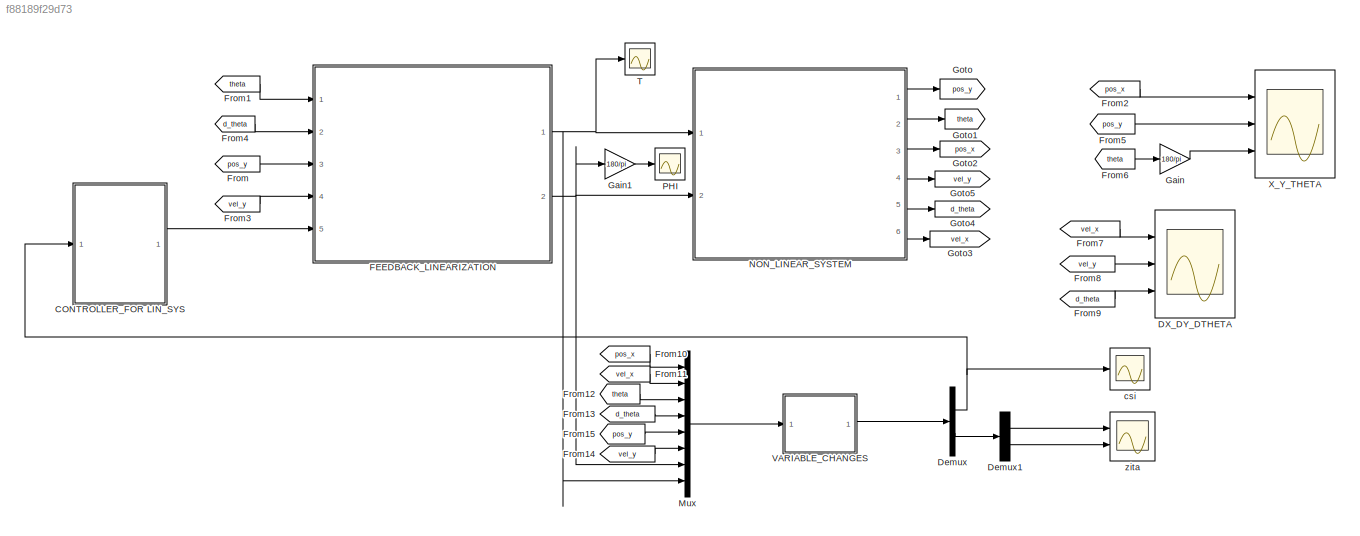
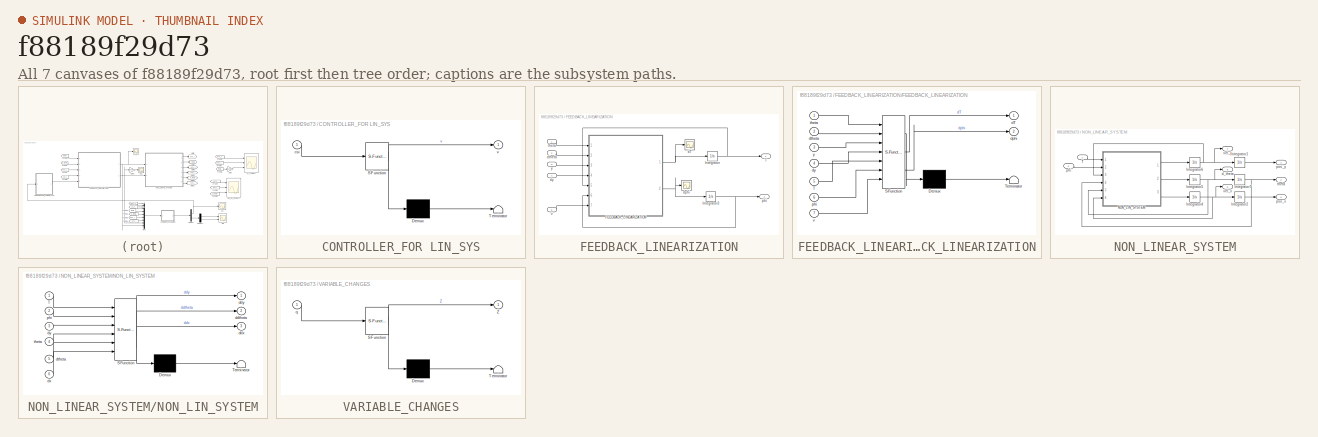
[diagram: thumbnail index - all 7 canvases of the model, root first then tree order]
MODEL slx_f88189f29d73
KIND model
CONFIG AbsTol = auto
CONFIG EnableMultiTasking = off
CONFIG FixedStep = 1e-3
CONFIG MaxStep = auto
CONFIG MinStep = auto
CONFIG RelTol = 1e-3
CONFIG SampleTimeConstraint = Unconstrained
CONFIG SolverName = FixedStepAuto
CONFIG StartTime = 0.0
CONFIG StopTime = 100
BLOCK [SubSystem] CONTROLLER_FOR LIN_SYS
  ErrorFcn = Stateflow.Translate.translate
  PermitHierarchicalResolution = ExplicitOnly
  Ports = [1, 1]
  RequestExecContextInheritance = off
  SFBlockType = MATLAB Function
  TreatAsAtomicUnit = on
BLOCK [Demux] CONTROLLER_FOR LIN_SYS/ Demux 
  Outputs = 1
  Ports = [1, 1]
BLOCK [S-Function] CONTROLLER_FOR LIN_SYS/ SFunction 
  EnableBusSupport = on
  FunctionName = sf_sfun
  PortCounts = [1 2]
  Ports = [1, 2]
  SFcnIsStateOwnerBlock = off
  SFunctionDeploymentMode = off
  Tag = Stateflow S-Function 3
BLOCK [Terminator] CONTROLLER_FOR LIN_SYS/ Terminator 
BLOCK [Inport] CONTROLLER_FOR LIN_SYS/csi
BLOCK [Outport] CONTROLLER_FOR LIN_SYS/v
BLOCK [Scope] DX_DY_DTHETA
  Floating = off
  NumInputPorts = 3
  Ports = [3]
  ScopeSpecificationString = Simulink.scopes.TimeScopeBlockCfg('CurrentConfiguration', extmgr.ConfigurationSet(extmgr.Configuration('Core','General UI',true),extmgr.Configuration('Core','Source UI',true),extmgr.Configuration('Sources','WiredSimulink',true,'DataLoggingVariableName','ScopeData5'),extmgr.Configuration('Visuals','Time Domain',true,'SerializedDisplays',{struct('MinYLimReal','-2.97468','MaxYLimReal','0.33052','YLab...<+2737ch>
BLOCK [Demux] Demux
  Outputs = [6 2]
  Ports = [1, 2]
BLOCK [Demux] Demux1
  Outputs = 2
  Ports = [1, 2]
BLOCK [SubSystem] FEEDBACK_LINEARIZATION
  Ports = [5, 2]
  RequestExecContextInheritance = off
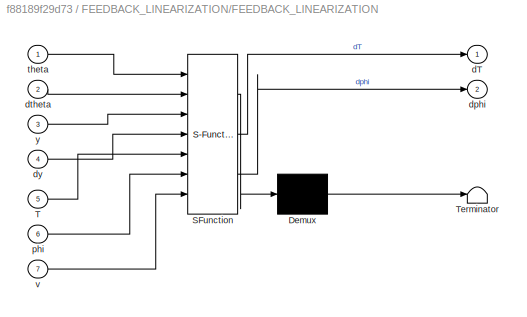
BLOCK [SubSystem] FEEDBACK_LINEARIZATION/FEEDBACK_LINEARIZATION
  ErrorFcn = Stateflow.Translate.translate
  PermitHierarchicalResolution = ExplicitOnly
  Ports = [7, 2]
  RequestExecContextInheritance = off
  SFBlockType = MATLAB Function
  TreatAsAtomicUnit = on
BLOCK [Demux] FEEDBACK_LINEARIZATION/FEEDBACK_LINEARIZATION/ Demux 
  Outputs = 1
  Ports = [1, 1]
BLOCK [S-Function] FEEDBACK_LINEARIZATION/FEEDBACK_LINEARIZATION/ SFunction 
  EnableBusSupport = on
  FunctionName = sf_sfun
  Parameters = J_par,M_par,g_par,l_par,mu_y_par
  PortCounts = [7 3]
  Ports = [7, 3]
  SFcnIsStateOwnerBlock = off
  SFunctionDeploymentMode = off
  Tag = Stateflow S-Function 1
BLOCK [Terminator] FEEDBACK_LINEARIZATION/FEEDBACK_LINEARIZATION/ Terminator 
BLOCK [Inport] FEEDBACK_LINEARIZATION/FEEDBACK_LINEARIZATION/T
  Port = 5
BLOCK [Outport] FEEDBACK_LINEARIZATION/FEEDBACK_LINEARIZATION/dT
BLOCK [Outport] FEEDBACK_LINEARIZATION/FEEDBACK_LINEARIZATION/dphi
  Port = 2
BLOCK [Inport] FEEDBACK_LINEARIZATION/FEEDBACK_LINEARIZATION/dtheta
  Port = 2
BLOCK [Inport] FEEDBACK_LINEARIZATION/FEEDBACK_LINEARIZATION/dy
  Port = 4
BLOCK [Inport] FEEDBACK_LINEARIZATION/FEEDBACK_LINEARIZATION/phi
  Port = 6
BLOCK [Inport] FEEDBACK_LINEARIZATION/FEEDBACK_LINEARIZATION/theta
BLOCK [Inport] FEEDBACK_LINEARIZATION/FEEDBACK_LINEARIZATION/v
  Port = 7
BLOCK [Inport] FEEDBACK_LINEARIZATION/FEEDBACK_LINEARIZATION/y
  Port = 3
BLOCK [Integrator] FEEDBACK_LINEARIZATION/Integrator
  InitialCondition = T0
  Ports = [1, 1]
BLOCK [Integrator] FEEDBACK_LINEARIZATION/Integrator3
  Ports = [1, 1]
BLOCK [Outport] FEEDBACK_LINEARIZATION/T
BLOCK [Scope] FEEDBACK_LINEARIZATION/dT
  Floating = off
  NumInputPorts = 1
  Ports = [1]
  ScopeSpecificationString = Simulink.scopes.TimeScopeBlockCfg('CurrentConfiguration', extmgr.ConfigurationSet(extmgr.Configuration('Core','General UI',true),extmgr.Configuration('Core','Source UI',true),extmgr.Configuration('Sources','WiredSimulink',true,'DataLoggingVariableName','ScopeData7'),extmgr.Configuration('Visuals','Time Domain',true),extmgr.Configuration('Tools','Plot Navigation',true),extmgr.Configuration('Tools',...<+40ch>
BLOCK [Scope] FEEDBACK_LINEARIZATION/dphi
  Floating = off
  NumInputPorts = 1
  Ports = [1]
  ScopeSpecificationString = Simulink.scopes.TimeScopeBlockCfg('CurrentConfiguration', extmgr.ConfigurationSet(extmgr.Configuration('Core','General UI',true),extmgr.Configuration('Core','Source UI',true),extmgr.Configuration('Sources','WiredSimulink',true,'DataLoggingVariableName','ScopeData6'),extmgr.Configuration('Visuals','Time Domain',true),extmgr.Configuration('Tools','Plot Navigation',true),extmgr.Configuration('Tools',...<+40ch>
BLOCK [Inport] FEEDBACK_LINEARIZATION/dtheta
  Port = 2
BLOCK [Inport] FEEDBACK_LINEARIZATION/dy
  Port = 4
BLOCK [Outport] FEEDBACK_LINEARIZATION/phi
  Port = 2
BLOCK [Inport] FEEDBACK_LINEARIZATION/theta
BLOCK [Inport] FEEDBACK_LINEARIZATION/v
  Port = 5
BLOCK [Inport] FEEDBACK_LINEARIZATION/y
  Port = 3
BLOCK [From] From
  GotoTag = pos_y
BLOCK [From] From1
  GotoTag = theta
BLOCK [From] From10
  GotoTag = pos_x
BLOCK [From] From11
  GotoTag = vel_x
BLOCK [From] From12
  GotoTag = theta
BLOCK [From] From13
  GotoTag = d_theta
BLOCK [From] From14
  GotoTag = vel_y
BLOCK [From] From15
  GotoTag = pos_y
BLOCK [From] From2
  GotoTag = pos_x
BLOCK [From] From3
  GotoTag = vel_y
BLOCK [From] From4
  GotoTag = d_theta
BLOCK [From] From5
  GotoTag = pos_y
BLOCK [From] From6
  GotoTag = theta
BLOCK [From] From7
  GotoTag = vel_x
BLOCK [From] From8
  GotoTag = vel_y
BLOCK [From] From9
  GotoTag = d_theta
BLOCK [Gain] Gain
  Gain = 180/pi
BLOCK [Gain] Gain1
  Gain = 180/pi
BLOCK [Goto] Goto
  GotoTag = pos_y
BLOCK [Goto] Goto1
  GotoTag = theta
BLOCK [Goto] Goto2
  GotoTag = pos_x
BLOCK [Goto] Goto3
  GotoTag = vel_x
BLOCK [Goto] Goto4
  GotoTag = d_theta
BLOCK [Goto] Goto5
  GotoTag = vel_y
BLOCK [Mux] Mux
  DisplayOption = bar
  Inputs = 8
  Ports = [8, 1]
BLOCK [SubSystem] NON_LINEAR_SYSTEM
  Ports = [2, 6]
  RequestExecContextInheritance = off
BLOCK [Integrator] NON_LINEAR_SYSTEM/Integrator1
  InitialCondition = y0
  Ports = [1, 1]
BLOCK [Integrator] NON_LINEAR_SYSTEM/Integrator2
  InitialCondition = x0
  Ports = [1, 1]
BLOCK [Integrator] NON_LINEAR_SYSTEM/Integrator4
  Ports = [1, 1]
BLOCK [Integrator] NON_LINEAR_SYSTEM/Integrator5
  Ports = [1, 1]
BLOCK [Integrator] NON_LINEAR_SYSTEM/Integrator6
  Ports = [1, 1]
BLOCK [Integrator] NON_LINEAR_SYSTEM/Integrator7
  InitialCondition = theta0
  Ports = [1, 1]
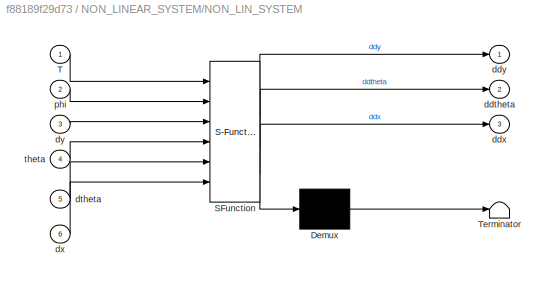
BLOCK [SubSystem] NON_LINEAR_SYSTEM/NON_LIN_SYSTEM
  ErrorFcn = Stateflow.Translate.translate
  PermitHierarchicalResolution = ExplicitOnly
  Ports = [6, 3]
  RequestExecContextInheritance = off
  SFBlockType = MATLAB Function
  TreatAsAtomicUnit = on
BLOCK [Demux] NON_LINEAR_SYSTEM/NON_LIN_SYSTEM/ Demux 
  Outputs = 1
  Ports = [1, 1]
BLOCK [S-Function] NON_LINEAR_SYSTEM/NON_LIN_SYSTEM/ SFunction 
  EnableBusSupport = on
  FunctionName = sf_sfun
  Parameters = J_par,M_par,g_par,l_par,mu_x_par,mu_y_par
  PortCounts = [6 4]
  Ports = [6, 4]
  SFcnIsStateOwnerBlock = off
  SFunctionDeploymentMode = off
  Tag = Stateflow S-Function 2
BLOCK [Terminator] NON_LINEAR_SYSTEM/NON_LIN_SYSTEM/ Terminator 
BLOCK [Inport] NON_LINEAR_SYSTEM/NON_LIN_SYSTEM/T
BLOCK [Outport] NON_LINEAR_SYSTEM/NON_LIN_SYSTEM/ddtheta
  Port = 2
BLOCK [Outport] NON_LINEAR_SYSTEM/NON_LIN_SYSTEM/ddx
  Port = 3
BLOCK [Outport] NON_LINEAR_SYSTEM/NON_LIN_SYSTEM/ddy
BLOCK [Inport] NON_LINEAR_SYSTEM/NON_LIN_SYSTEM/dtheta
  Port = 5
BLOCK [Inport] NON_LINEAR_SYSTEM/NON_LIN_SYSTEM/dx
  Port = 6
BLOCK [Inport] NON_LINEAR_SYSTEM/NON_LIN_SYSTEM/dy
  Port = 3
BLOCK [Inport] NON_LINEAR_SYSTEM/NON_LIN_SYSTEM/phi
  Port = 2
BLOCK [Inport] NON_LINEAR_SYSTEM/NON_LIN_SYSTEM/theta
  Port = 4
BLOCK [Inport] NON_LINEAR_SYSTEM/T
BLOCK [Outport] NON_LINEAR_SYSTEM/d_theta
  Port = 5
BLOCK [Inport] NON_LINEAR_SYSTEM/phi
  Port = 2
BLOCK [Outport] NON_LINEAR_SYSTEM/pos_x
  Port = 3
BLOCK [Outport] NON_LINEAR_SYSTEM/pos_y
BLOCK [Outport] NON_LINEAR_SYSTEM/theta
  Port = 2
BLOCK [Outport] NON_LINEAR_SYSTEM/vel_x
  Port = 6
BLOCK [Outport] NON_LINEAR_SYSTEM/vel_y
  Port = 4
BLOCK [Scope] PHI
  Floating = off
  NumInputPorts = 1
  Ports = [1]
  ScopeSpecificationString = Simulink.scopes.TimeScopeBlockCfg('CurrentConfiguration', extmgr.ConfigurationSet(extmgr.Configuration('Core','General UI',true),extmgr.Configuration('Core','Source UI',true),extmgr.Configuration('Sources','WiredSimulink',true,'DataLoggingVariableName','ScopeData3'),extmgr.Configuration('Visuals','Time Domain',true,'SerializedDisplays',{struct('MinYLimReal','-5.93753','MaxYLimReal','33.41567','YLa...<+1420ch>
BLOCK [Scope] T
  Floating = off
  NumInputPorts = 1
  Ports = [1]
  ScopeSpecificationString = Simulink.scopes.TimeScopeBlockCfg('CurrentConfiguration', extmgr.ConfigurationSet(extmgr.Configuration('Core','General UI',true),extmgr.Configuration('Core','Source UI',true),extmgr.Configuration('Sources','WiredSimulink',true,'DataLoggingVariableName','ScopeData2'),extmgr.Configuration('Visuals','Time Domain',true,'SerializedDisplays',{struct('MinYLimReal','275874.0907','MaxYLimReal','10869347.32...<+1496ch>
BLOCK [SubSystem] VARIABLE_CHANGES
  ErrorFcn = Stateflow.Translate.translate
  PermitHierarchicalResolution = ExplicitOnly
  Ports = [1, 1]
  RequestExecContextInheritance = off
  SFBlockType = MATLAB Function
  TreatAsAtomicUnit = on
BLOCK [Demux] VARIABLE_CHANGES/ Demux 
  Outputs = 1
  Ports = [1, 1]
BLOCK [S-Function] VARIABLE_CHANGES/ SFunction 
  EnableBusSupport = on
  FunctionName = sf_sfun
  Parameters = J_par,M_par,g_par,l_par,mu_y_par
  PortCounts = [1 2]
  Ports = [1, 2]
  SFcnIsStateOwnerBlock = off
  SFunctionDeploymentMode = off
  Tag = Stateflow S-Function 4
BLOCK [Terminator] VARIABLE_CHANGES/ Terminator 
BLOCK [Outport] VARIABLE_CHANGES/Z
BLOCK [Inport] VARIABLE_CHANGES/q
BLOCK [Scope] X_Y_THETA
  Floating = off
  NumInputPorts = 3
  Ports = [3]
  ScopeSpecificationString = Simulink.scopes.TimeScopeBlockCfg('CurrentConfiguration', extmgr.ConfigurationSet(extmgr.Configuration('Core','General UI',true),extmgr.Configuration('Core','Source UI',true),extmgr.Configuration('Sources','WiredSimulink',true,'DataLoggingVariableName','ScopeData4'),extmgr.Configuration('Visuals','Time Domain',true,'SerializedDisplays',{struct('MinYLimReal','-319.12177','MaxYLimReal','35.45797','Y...<+2842ch>
BLOCK [Scope] csi
  Floating = off
  NumInputPorts = 1
  Ports = [1]
  ScopeSpecificationString = Simulink.scopes.TimeScopeBlockCfg('CurrentConfiguration', extmgr.ConfigurationSet(extmgr.Configuration('Core','General UI',true),extmgr.Configuration('Core','Source UI',true),extmgr.Configuration('Sources','WiredSimulink',true,'DataLoggingVariableName','ScopeData1'),extmgr.Configuration('Visuals','Time Domain',true),extmgr.Configuration('Tools','Plot Navigation',true),extmgr.Configuration('Tools',...<+40ch>
BLOCK [Scope] zita
  Floating = off
  NumInputPorts = 2
  Ports = [2]
  ScopeSpecificationString = Simulink.scopes.TimeScopeBlockCfg('CurrentConfiguration', extmgr.ConfigurationSet(extmgr.Configuration('Core','General UI',true),extmgr.Configuration('Core','Source UI',true),extmgr.Configuration('Sources','WiredSimulink',true,'DataLoggingVariableName','ScopeData3'),extmgr.Configuration('Visuals','Time Domain',true,'SerializedDisplays',{struct('MinYLimReal','-2554.75658','MaxYLimReal','284.97295',...<+2060ch>
LINE CONTROLLER_FOR LIN_SYS:1 -> FEEDBACK_LINEARIZATION:5
LINE Demux1:1 -> zita:1
LINE Demux1:2 -> zita:2
NET Demux:1 -> CONTROLLER_FOR LIN_SYS:1, csi:1
LINE Demux:2 -> Demux1:1
NET FEEDBACK_LINEARIZATION/FEEDBACK_LINEARIZATION:1 -> FEEDBACK_LINEARIZATION/Integrator:1, FEEDBACK_LINEARIZATION/dT:1
NET FEEDBACK_LINEARIZATION/FEEDBACK_LINEARIZATION:2 -> FEEDBACK_LINEARIZATION/Integrator3:1, FEEDBACK_LINEARIZATION/dphi:1
NET FEEDBACK_LINEARIZATION/Integrator3:1 -> FEEDBACK_LINEARIZATION/FEEDBACK_LINEARIZATION:6, FEEDBACK_LINEARIZATION/phi:1
NET FEEDBACK_LINEARIZATION/Integrator:1 -> FEEDBACK_LINEARIZATION/FEEDBACK_LINEARIZATION:5, FEEDBACK_LINEARIZATION/T:1
LINE FEEDBACK_LINEARIZATION/dtheta:1 -> FEEDBACK_LINEARIZATION/FEEDBACK_LINEARIZATION:2
LINE FEEDBACK_LINEARIZATION/dy:1 -> FEEDBACK_LINEARIZATION/FEEDBACK_LINEARIZATION:4
LINE FEEDBACK_LINEARIZATION/theta:1 -> FEEDBACK_LINEARIZATION/FEEDBACK_LINEARIZATION:1
LINE FEEDBACK_LINEARIZATION/v:1 -> FEEDBACK_LINEARIZATION/FEEDBACK_LINEARIZATION:7
LINE FEEDBACK_LINEARIZATION/y:1 -> FEEDBACK_LINEARIZATION/FEEDBACK_LINEARIZATION:3
NET FEEDBACK_LINEARIZATION:1 -> Mux:8, NON_LINEAR_SYSTEM:1, T:1
NET FEEDBACK_LINEARIZATION:2 -> Gain1:1, Mux:7, NON_LINEAR_SYSTEM:2
LINE From10:1 -> Mux:1
LINE From11:1 -> Mux:2
LINE From12:1 -> Mux:3
LINE From13:1 -> Mux:4
LINE From14:1 -> Mux:6
LINE From15:1 -> Mux:5
LINE From1:1 -> FEEDBACK_LINEARIZATION:1
LINE From2:1 -> X_Y_THETA:1
LINE From3:1 -> FEEDBACK_LINEARIZATION:4
LINE From4:1 -> FEEDBACK_LINEARIZATION:2
LINE From5:1 -> X_Y_THETA:2
LINE From6:1 -> Gain:1
LINE From7:1 -> DX_DY_DTHETA:1
LINE From8:1 -> DX_DY_DTHETA:2
LINE From9:1 -> DX_DY_DTHETA:3
LINE From:1 -> FEEDBACK_LINEARIZATION:3
LINE Gain1:1 -> PHI:1
LINE Gain:1 -> X_Y_THETA:3
LINE Mux:1 -> VARIABLE_CHANGES:1
LINE NON_LINEAR_SYSTEM/Integrator1:1 -> NON_LINEAR_SYSTEM/pos_y:1
LINE NON_LINEAR_SYSTEM/Integrator2:1 -> NON_LINEAR_SYSTEM/pos_x:1
NET NON_LINEAR_SYSTEM/Integrator4:1 -> NON_LINEAR_SYSTEM/Integrator2:1, NON_LINEAR_SYSTEM/NON_LIN_SYSTEM:6, NON_LINEAR_SYSTEM/vel_x:1
NET NON_LINEAR_SYSTEM/Integrator5:1 -> NON_LINEAR_SYSTEM/Integrator7:1, NON_LINEAR_SYSTEM/NON_LIN_SYSTEM:5, NON_LINEAR_SYSTEM/d_theta:1
NET NON_LINEAR_SYSTEM/Integrator6:1 -> NON_LINEAR_SYSTEM/Integrator1:1, NON_LINEAR_SYSTEM/NON_LIN_SYSTEM:3, NON_LINEAR_SYSTEM/vel_y:1
NET NON_LINEAR_SYSTEM/Integrator7:1 -> NON_LINEAR_SYSTEM/NON_LIN_SYSTEM:4, NON_LINEAR_SYSTEM/theta:1
LINE NON_LINEAR_SYSTEM/NON_LIN_SYSTEM:1 -> NON_LINEAR_SYSTEM/Integrator6:1
LINE NON_LINEAR_SYSTEM/NON_LIN_SYSTEM:2 -> NON_LINEAR_SYSTEM/Integrator5:1
LINE NON_LINEAR_SYSTEM/NON_LIN_SYSTEM:3 -> NON_LINEAR_SYSTEM/Integrator4:1
LINE NON_LINEAR_SYSTEM/T:1 -> NON_LINEAR_SYSTEM/NON_LIN_SYSTEM:1
LINE NON_LINEAR_SYSTEM/phi:1 -> NON_LINEAR_SYSTEM/NON_LIN_SYSTEM:2
LINE NON_LINEAR_SYSTEM:1 -> Goto:1
LINE NON_LINEAR_SYSTEM:2 -> Goto1:1
LINE NON_LINEAR_SYSTEM:3 -> Goto2:1
LINE NON_LINEAR_SYSTEM:4 -> Goto5:1
LINE NON_LINEAR_SYSTEM:5 -> Goto4:1
LINE NON_LINEAR_SYSTEM:6 -> Goto3:1
LINE VARIABLE_CHANGES:1 -> Demux:1
note: NET lines group one-source signal fan-out (src -> all destinations, sorted); 1:1 wires keep LINE
CHART FEEDBACK_LINEARIZATION/FEEDBACK_LINEARIZATION states=1 transitions=1
  STATE_LABEL 'eML_blk_kernel()'
  STATE_LABEL 'SCRIPT:\nfunction [dT, dphi] = fcn( theta, dtheta, y, dy, T, phi, v, M_par, l_par, J_par, mu_y_par, g_par)\n\nE = zeros(2,2);\nGamma = zeros(2,1);\n\nE =[cos(phi + theta)/M_par, -(T*sin(phi + theta))/M_par;\n    -(l_par*sin(phi))/J_par,       -(T*l_par*cos(phi))/J_par];\n \nGamma = [(mu_y_par*((M_par*g_par + dy*mu_y_par)/M_par - (T*cos(phi + theta))/M_par))/M_par - (T*dtheta*sin(phi + theta))/M_par;\n      ...<+75ch>'
CHART NON_LINEAR_SYSTEM/NON_LIN_SYSTEM states=1 transitions=1
  STATE_LABEL 'eML_blk_kernel()'
  STATE_LABEL 'SCRIPT:\nfunction [ddy, ddtheta, ddx] = fcn(T, phi, dy, theta, dtheta, dx, M_par, mu_x_par, J_par, l_par, mu_y_par, g_par)\n\nddx = M_par^-1*(-T*sin(theta+phi) - mu_x_par*dx);\nddtheta = J_par^-1*(-T*l_par*sin(phi));\nddy = M_par^-1*(T*cos(theta+phi) - mu_y_par*dy - M_par*g_par);\n\n\nend'
CHART CONTROLLER_FOR LIN_SYS states=1 transitions=1
  STATE_LABEL 'eML_blk_kernel()'
  STATE_LABEL 'SCRIPT:\nfunction v = fcn(csi)\n\n% v = K*csi;\n%eigenvalues in [-1;-2;-3] for both subsystems (A1,B1) and (A2,B2)\n\n% csi = [ csi(1) = y;\n%         csi(2) = dy;\n%         csi(3) = v1;\n%         csi(4) = theta;\n%         csi(5) = dtheta;\n%         csi(6) = v2];\n\nK = [-6 -11 -6   0   0  0;\n      0   0  0  -6 -11 -6];\n  \nv = K*csi;\n\nend\n'
CHART VARIABLE_CHANGES states=1 transitions=1
  STATE_LABEL 'eML_blk_kernel()'
  STATE_LABEL 'SCRIPT:\nfunction Z = fcn(q, M_par, g_par, mu_y_par, l_par, J_par)\n\n% q = [x dx theta dtheta y dy phi T];\n\nZ = [ q(5); \n      q(6); \n      (q(8)*cos(q(7) + q(3)))/M_par - (M_par*g_par + q(6)*mu_y_par)/M_par;\n      q(3);\n      q(4);\n      -(q(8)*l_par*sin(q(7)))/J_par;\n      q(1);\n      q(2)];\n\nend\n'
CHART  states=0 transitions=0
CHART  states=0 transitions=0
CHART  states=0 transitions=0
CHART  states=0 transitions=0
